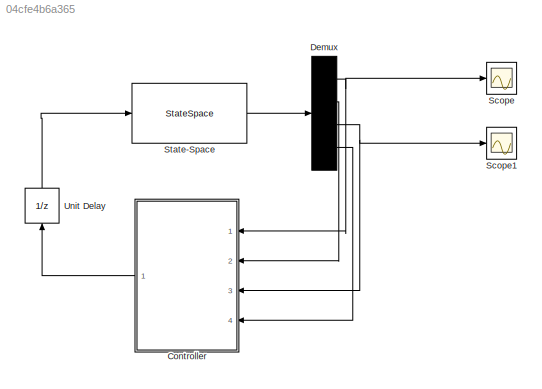
MODEL slx_04cfe4b6a365
KIND model
CONFIG AbsTol = auto
CONFIG EnableMultiTasking = off
CONFIG FixedStep = 0.005
CONFIG MaxStep = auto
CONFIG MinStep = auto
CONFIG RelTol = 1e-3
CONFIG SampleTimeConstraint = Unconstrained
CONFIG Solver = ode4
CONFIG SolverName = ode4
CONFIG StartTime = 0.0
CONFIG StopTime = 10
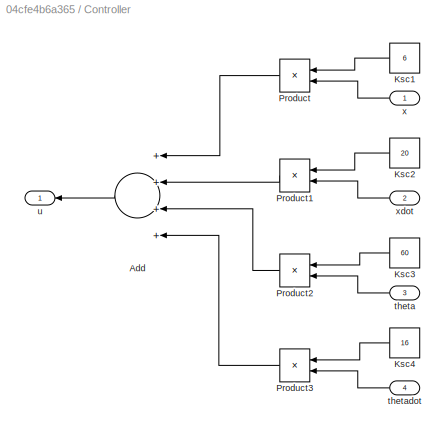
BLOCK [SubSystem] Controller
  Ports = [4, 1]
  RequestExecContextInheritance = off
BLOCK [Sum] Controller/Add
  InputSameDT = off
  Inputs = ++++
  OutDataTypeStr = Inherit: Inherit via internal rule
  Ports = [4, 1]
  SaturateOnIntegerOverflow = off
BLOCK [Constant] Controller/Ksc1
  Value = 6
BLOCK [Constant] Controller/Ksc2
  Value = 20
BLOCK [Constant] Controller/Ksc3
  Value = 60
BLOCK [Constant] Controller/Ksc4
  Value = 16
BLOCK [Product] Controller/Product
  InputSameDT = off
  OutDataTypeStr = Inherit: Inherit via internal rule
  Ports = [2, 1]
  RndMeth = Floor
  SaturateOnIntegerOverflow = off
BLOCK [Product] Controller/Product1
  InputSameDT = off
  OutDataTypeStr = Inherit: Inherit via internal rule
  Ports = [2, 1]
  RndMeth = Floor
  SaturateOnIntegerOverflow = off
BLOCK [Product] Controller/Product2
  InputSameDT = off
  OutDataTypeStr = Inherit: Inherit via internal rule
  Ports = [2, 1]
  RndMeth = Floor
  SaturateOnIntegerOverflow = off
BLOCK [Product] Controller/Product3
  InputSameDT = off
  OutDataTypeStr = Inherit: Inherit via internal rule
  Ports = [2, 1]
  RndMeth = Floor
  SaturateOnIntegerOverflow = off
BLOCK [Inport] Controller/theta
  IconDisplay = Port number
  Port = 3
BLOCK [Inport] Controller/thetadot
  IconDisplay = Port number
  Port = 4
BLOCK [Outport] Controller/u
  IconDisplay = Port number
BLOCK [Inport] Controller/x
  IconDisplay = Port number
BLOCK [Inport] Controller/xdot
  IconDisplay = Port number
  Port = 2
BLOCK [Demux] Demux
  DisplayOption = bar
  Ports = [1, 4]
BLOCK [Scope] Scope
  Floating = off
  NumInputPorts = 1
  Ports = [1]
  ScopeSpecificationString = Simulink.scopes.TimeScopeBlockCfg('CurrentConfiguration', extmgr.ConfigurationSet(extmgr.Configuration('Core','General UI',true),extmgr.Configuration('Core','Source UI',true),extmgr.Configuration('Sources','WiredSimulink',true),extmgr.Configuration('Visuals','Time Domain',true,'SerializedDisplays',{struct('MinYLimReal','-0.41077','MaxYLimReal','3.69902','YLabelReal','','MinYLimMag','0.00000','MaxY...<+1425ch>
BLOCK [Scope] Scope1
  Floating = off
  NumInputPorts = 1
  Ports = [1]
  ScopeSpecificationString = Simulink.scopes.TimeScopeBlockCfg('CurrentConfiguration', extmgr.ConfigurationSet(extmgr.Configuration('Core','General UI',true),extmgr.Configuration('Core','Source UI',true),extmgr.Configuration('Sources','WiredSimulink',true,'DataLoggingVariableName','ScopeData1'),extmgr.Configuration('Visuals','Time Domain',true,'SerializedDisplays',{struct('MinYLimReal','-0.22539','MaxYLimReal','0.10229','YLab...<+1421ch>
BLOCK [StateSpace] State-Space
  A = [-70.9075641724949	-142.716008423025	-127.437066945202	248.294128957997;\n-3.03592637405808	-10.3288709732968	-0.493815798669647	21.1354434753889;\n0.670981876929746	-7.23294283690567	-2.47413975251526	9.96796971175632;\n0.200385870404734	1.55316407844718	0.370840249908544	-3.66739535937049]
  B = [-0.0348457430523765;\n-0.630599300367353;\n-0.124983752737534;\n-0.507159367596411]
  C = [-2.06371202902639e-06	0.000285173392916046	0.000369531172924105	0.00263539784891988;\n2.82106671085145e-05	-0.000612768936893908	9.30825895865964e-05	-0.000231543767866056;\n-6.54522748496599e-07	-1.26245836377179e-06	-0.000128108505970310	-6.25961435597254e-05;\n-2.41399172816718e-05	0.000467823843620001	0.000188796774982193	-0.000618392394704504]
  D = [3.90004839716945e-06;\n-1.23902360268618e-06;\n-1.21326595221446e-07;\n2.27036604040985e-08]
  InitialCondition = [1000 1000 1000 1000]
  Ports = [1, 1]
BLOCK [UnitDelay] Unit Delay
  InputProcessing = Elements as channels (sample based)
  SampleTime = 0.005
LINE Controller/Add:1 -> Controller/u:1
LINE Controller/Ksc1:1 -> Controller/Product:1
LINE Controller/Ksc2:1 -> Controller/Product1:1
LINE Controller/Ksc3:1 -> Controller/Product2:1
LINE Controller/Ksc4:1 -> Controller/Product3:1
LINE Controller/Product1:1 -> Controller/Add:2
LINE Controller/Product2:1 -> Controller/Add:3
LINE Controller/Product3:1 -> Controller/Add:4
LINE Controller/Product:1 -> Controller/Add:1
LINE Controller/theta:1 -> Controller/Product2:2
LINE Controller/thetadot:1 -> Controller/Product3:2
LINE Controller/x:1 -> Controller/Product:2
LINE Controller/xdot:1 -> Controller/Product1:2
LINE Controller:1 -> Unit Delay:1
NET Demux:1 -> Controller:1, Scope:1
LINE Demux:2 -> Controller:2
NET Demux:3 -> Controller:3, Scope1:1
LINE Demux:4 -> Controller:4
LINE State-Space:1 -> Demux:1
LINE Unit Delay:1 -> State-Space:1
note: NET lines group one-source signal fan-out (src -> all destinations, sorted); 1:1 wires keep LINE
